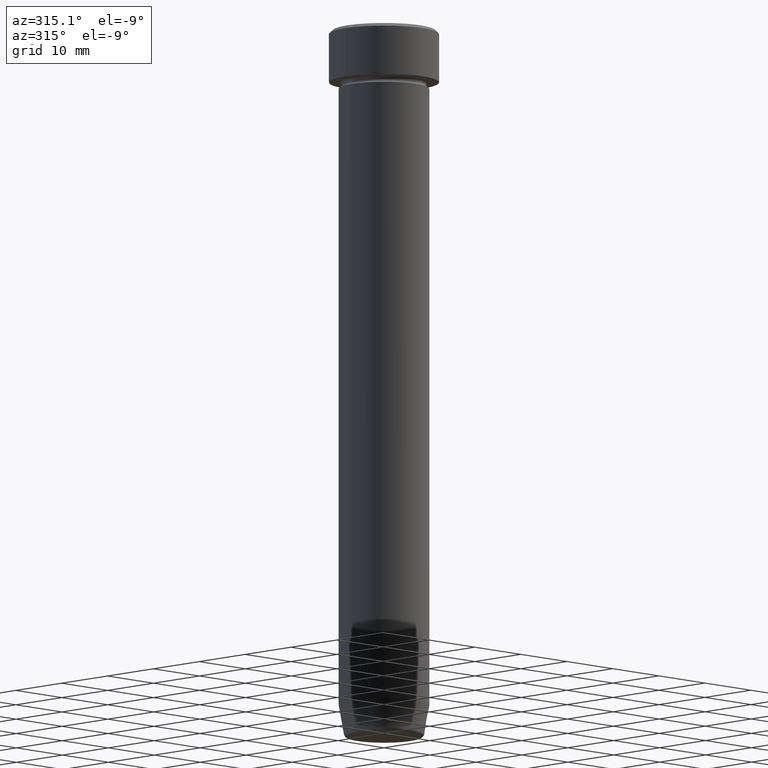
[diagram: clean part render]
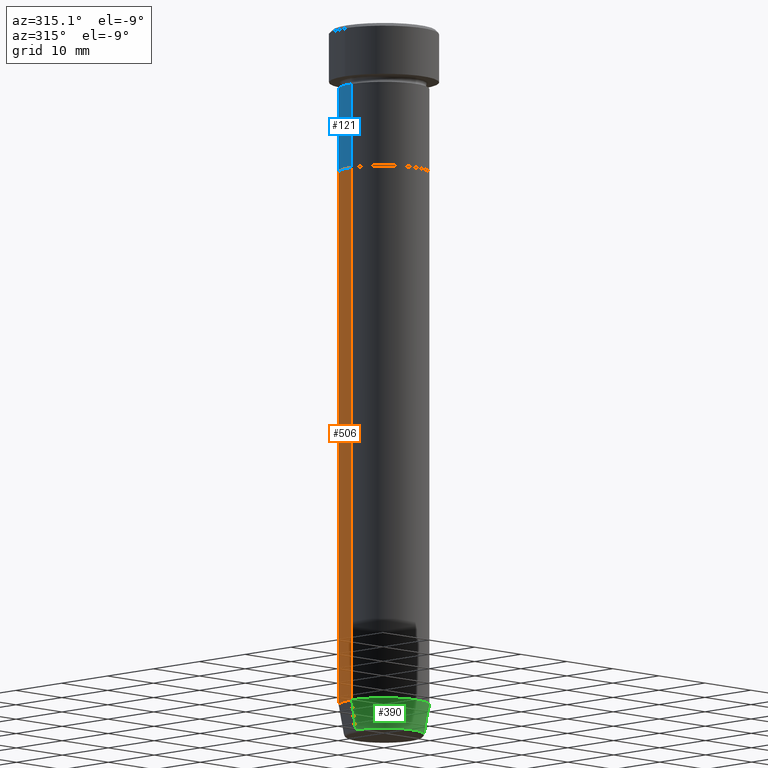
[diagram: same view with three faces highlighted in distinct colors, each labeled with its STEP entity id]
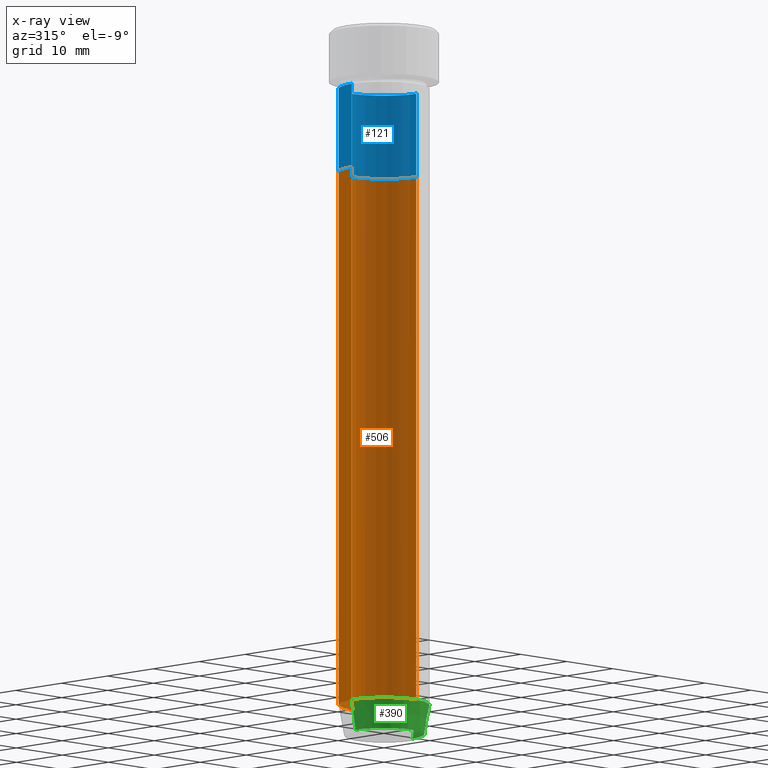
[diagram: x-ray of the same camera — body ghosted, the three highlighted faces saturated]
A machine part, auxiliary view with three faces highlighted in distinct colors.
The next image is the same camera in x-ray (body ghosted, the three faces saturated) — at least one of them is partly hidden behind the body in this view.
Their STEP definitions:

[orange] entity #506 — the highlighted cylindrical surface (partial cylindrical patch) has radius 7 mm, axis along (-0, -0, 1).
#24 = EDGE_CURVE ( 'NONE', #410, #456, #347, .T. ) ;
#35 = EDGE_CURVE ( 'NONE', #590, #457, #519, .T. ) ;
#66 = DIRECTION ( 'NONE',  ( -0.000000000000000000, -0.000000000000000000, 1.000000000000000000 ) ) ;
#120 = AXIS2_PLACEMENT_3D ( 'NONE', #532, #482, #199 ) ;
#157 = ORIENTED_EDGE ( 'NONE', *, *, #411, .T. ) ;
#169 = EDGE_CURVE ( 'NONE', #457, #456, #210, .T. ) ;
#199 = DIRECTION ( 'NONE',  ( 1.000000000000000000, 0.000000000000000000, 0.000000000000000000 ) ) ;
#210 = CIRCLE ( 'NONE', #550, 6.999999999999999112 ) ;
#214 = CARTESIAN_POINT ( 'NONE',  ( 0.000000000000000000, 0.000000000000000000, 0.000000000000000000 ) ) ;
#224 = DIRECTION ( 'NONE',  ( -0.000000000000000000, -0.000000000000000000, 1.000000000000000000 ) ) ;
#249 = CIRCLE ( 'NONE', #120, 6.999999999999999112 ) ;
#266 = ORIENTED_EDGE ( 'NONE', *, *, #35, .F. ) ;
#271 = FACE_OUTER_BOUND ( 'NONE', #580, .T. ) ;
#273 = CARTESIAN_POINT ( 'NONE',  ( -6.999999999999999112, 8.572527594031472204E-16, -22.00000000000000000 ) ) ;
#298 = DIRECTION ( 'NONE',  ( -0.000000000000000000, -0.000000000000000000, 1.000000000000000000 ) ) ;
#305 = VECTOR ( 'NONE', #298, 1000.000000000000000 ) ;
#324 = CYLINDRICAL_SURFACE ( 'NONE', #527, 6.999999999999999112 ) ;
#344 = CARTESIAN_POINT ( 'NONE',  ( -6.999999999999999112, 8.572527594031472204E-16, -104.9999999999999858 ) ) ;
#347 = LINE ( 'NONE', #522, #305 ) ;
#362 = ORIENTED_EDGE ( 'NONE', *, *, #24, .T. ) ;
#375 = CARTESIAN_POINT ( 'NONE',  ( 6.999999999999999112, 0.000000000000000000, -22.00000000000000000 ) ) ;
#410 = VERTEX_POINT ( 'NONE', #344 ) ;
#411 = EDGE_CURVE ( 'NONE', #590, #410, #249, .T. ) ;
#417 = DIRECTION ( 'NONE',  ( 1.000000000000000000, 0.000000000000000000, 0.000000000000000000 ) ) ;
#437 = ORIENTED_EDGE ( 'NONE', *, *, #169, .F. ) ;
#456 = VERTEX_POINT ( 'NONE', #273 ) ;
#457 = VERTEX_POINT ( 'NONE', #375 ) ;
#469 = DIRECTION ( 'NONE',  ( 1.000000000000000000, 0.000000000000000000, 0.000000000000000000 ) ) ;
#482 = DIRECTION ( 'NONE',  ( -0.000000000000000000, -0.000000000000000000, 1.000000000000000000 ) ) ;
#483 = CARTESIAN_POINT ( 'NONE',  ( 6.999999999999999112, 0.000000000000000000, 0.000000000000000000 ) ) ;
#487 = VECTOR ( 'NONE', #66, 1000.000000000000000 ) ;
#506 = ADVANCED_FACE ( 'NONE', ( #271 ), #324, .T. ) ;
#508 = DIRECTION ( 'NONE',  ( -0.000000000000000000, -0.000000000000000000, 1.000000000000000000 ) ) ;
#519 = LINE ( 'NONE', #483, #487 ) ;
#522 = CARTESIAN_POINT ( 'NONE',  ( -6.999999999999999112, 8.572527594031472204E-16, 0.000000000000000000 ) ) ;
#527 = AXIS2_PLACEMENT_3D ( 'NONE', #214, #224, #417 ) ;
#532 = CARTESIAN_POINT ( 'NONE',  ( 0.000000000000000000, 0.000000000000000000, -104.9999999999999858 ) ) ;
#544 = CARTESIAN_POINT ( 'NONE',  ( 6.999999999999999112, 0.000000000000000000, -104.9999999999999858 ) ) ;
#550 = AXIS2_PLACEMENT_3D ( 'NONE', #557, #508, #469 ) ;
#557 = CARTESIAN_POINT ( 'NONE',  ( 0.000000000000000000, 0.000000000000000000, -22.00000000000000000 ) ) ;
#580 = EDGE_LOOP ( 'NONE', ( #157, #362, #437, #266 ) ) ;
#590 = VERTEX_POINT ( 'NONE', #544 ) ;

[blue] entity #121 — the highlighted cylindrical surface (partial cylindrical patch) has radius 7 mm, axis along (-0, -0, 1).
#2 = ORIENTED_EDGE ( 'NONE', *, *, #486, .F. ) ;
#9 = LINE ( 'NONE', #239, #18 ) ;
#18 = VECTOR ( 'NONE', #145, 1000.000000000000000 ) ;
#25 = ORIENTED_EDGE ( 'NONE', *, *, #62, .T. ) ;
#26 = ORIENTED_EDGE ( 'NONE', *, *, #96, .T. ) ;
#38 = CARTESIAN_POINT ( 'NONE',  ( -6.999999999999999112, 8.572527594031472204E-16, 0.000000000000000000 ) ) ;
#40 = AXIS2_PLACEMENT_3D ( 'NONE', #588, #371, #171 ) ;
#48 = AXIS2_PLACEMENT_3D ( 'NONE', #367, #184, #53 ) ;
#53 = DIRECTION ( 'NONE',  ( 1.000000000000000000, 0.000000000000000000, 0.000000000000000000 ) ) ;
#62 = EDGE_CURVE ( 'NONE', #502, #312, #109, .T. ) ;
#68 = VECTOR ( 'NONE', #219, 1000.000000000000000 ) ;
#77 = FACE_OUTER_BOUND ( 'NONE', #88, .T. ) ;
#88 = EDGE_LOOP ( 'NONE', ( #25, #26, #117, #2 ) ) ;
#96 = EDGE_CURVE ( 'NONE', #312, #423, #360, .T. ) ;
#109 = CIRCLE ( 'NONE', #48, 6.999999999999999112 ) ;
#113 = CARTESIAN_POINT ( 'NONE',  ( -7.000000000000000888, 8.572527594031474176E-16, -9.000000000000001776 ) ) ;
#114 = VERTEX_POINT ( 'NONE', #119 ) ;
#117 = ORIENTED_EDGE ( 'NONE', *, *, #232, .F. ) ;
#119 = CARTESIAN_POINT ( 'NONE',  ( 7.000000000000000000, 0.000000000000000000, -9.000000000000001776 ) ) ;
#121 = ADVANCED_FACE ( 'NONE', ( #77 ), #414, .T. ) ;
#145 = DIRECTION ( 'NONE',  ( -0.000000000000000000, -0.000000000000000000, 1.000000000000000000 ) ) ;
#153 = DIRECTION ( 'NONE',  ( 1.000000000000000000, 0.000000000000000000, 0.000000000000000000 ) ) ;
#171 = DIRECTION ( 'NONE',  ( 1.000000000000000000, 0.000000000000000000, 0.000000000000000000 ) ) ;
#173 = CARTESIAN_POINT ( 'NONE',  ( 6.999999999999999112, 0.000000000000000000, -22.00000000000000000 ) ) ;
#184 = DIRECTION ( 'NONE',  ( -0.000000000000000000, -0.000000000000000000, 1.000000000000000000 ) ) ;
#219 = DIRECTION ( 'NONE',  ( -0.000000000000000000, -0.000000000000000000, 1.000000000000000000 ) ) ;
#232 = EDGE_CURVE ( 'NONE', #114, #423, #342, .T. ) ;
#239 = CARTESIAN_POINT ( 'NONE',  ( 6.999999999999999112, 0.000000000000000000, 0.000000000000000000 ) ) ;
#260 = AXIS2_PLACEMENT_3D ( 'NONE', #574, #338, #153 ) ;
#312 = VERTEX_POINT ( 'NONE', #319 ) ;
#319 = CARTESIAN_POINT ( 'NONE',  ( -6.999999999999999112, 8.572527594031472204E-16, -22.00000000000000000 ) ) ;
#338 = DIRECTION ( 'NONE',  ( -0.000000000000000000, -0.000000000000000000, 1.000000000000000000 ) ) ;
#342 = CIRCLE ( 'NONE', #260, 7.000000000000000000 ) ;
#360 = LINE ( 'NONE', #38, #68 ) ;
#367 = CARTESIAN_POINT ( 'NONE',  ( 0.000000000000000000, 0.000000000000000000, -22.00000000000000000 ) ) ;
#371 = DIRECTION ( 'NONE',  ( -0.000000000000000000, -0.000000000000000000, 1.000000000000000000 ) ) ;
#414 = CYLINDRICAL_SURFACE ( 'NONE', #40, 6.999999999999999112 ) ;
#423 = VERTEX_POINT ( 'NONE', #113 ) ;
#486 = EDGE_CURVE ( 'NONE', #502, #114, #9, .T. ) ;
#502 = VERTEX_POINT ( 'NONE', #173 ) ;
#574 = CARTESIAN_POINT ( 'NONE',  ( 0.000000000000000000, 0.000000000000000000, -9.000000000000001776 ) ) ;
#588 = CARTESIAN_POINT ( 'NONE',  ( 0.000000000000000000, 0.000000000000000000, 0.000000000000000000 ) ) ;

[green] entity #390 — the highlighted conical surface has half-angle 10 deg.
#51 = FACE_OUTER_BOUND ( 'NONE', #208, .T. ) ;
#54 = DIRECTION ( 'NONE',  ( -0.1736481776669302479, 2.126576849575770682E-17, 0.9848077530122081313 ) ) ;
#79 = VECTOR ( 'NONE', #54, 1000.000000000000114 ) ;
#92 = DIRECTION ( 'NONE',  ( 1.000000000000000000, 0.000000000000000000, 0.000000000000000000 ) ) ;
#99 = CONICAL_SURFACE ( 'NONE', #142, 6.118365096457673680, 0.1745329251994328645 ) ;
#128 = LINE ( 'NONE', #327, #79 ) ;
#142 = AXIS2_PLACEMENT_3D ( 'NONE', #384, #285, #470 ) ;
#156 = LINE ( 'NONE', #170, #291 ) ;
#159 = EDGE_CURVE ( 'NONE', #410, #590, #427, .T. ) ;
#170 = CARTESIAN_POINT ( 'NONE',  ( 6.118365096457673680, 0.000000000000000000, -109.9999999999999858 ) ) ;
#192 = ORIENTED_EDGE ( 'NONE', *, *, #363, .F. ) ;
#207 = VERTEX_POINT ( 'NONE', #257 ) ;
#208 = EDGE_LOOP ( 'NONE', ( #192, #405, #374, #536 ) ) ;
#222 = VERTEX_POINT ( 'NONE', #489 ) ;
#257 = CARTESIAN_POINT ( 'NONE',  ( -6.191219157375138060, 8.077292158965354448E-16, -109.5868240888334384 ) ) ;
#265 = EDGE_CURVE ( 'NONE', #207, #222, #551, .T. ) ;
#285 = DIRECTION ( 'NONE',  ( -0.000000000000000000, -0.000000000000000000, 1.000000000000000000 ) ) ;
#291 = VECTOR ( 'NONE', #495, 1000.000000000000114 ) ;
#293 = DIRECTION ( 'NONE',  ( -0.000000000000000000, -0.000000000000000000, 1.000000000000000000 ) ) ;
#326 = CARTESIAN_POINT ( 'NONE',  ( 0.000000000000000000, 0.000000000000000000, -104.9999999999999858 ) ) ;
#327 = CARTESIAN_POINT ( 'NONE',  ( -6.118365096457673680, 7.492836231391777609E-16, -109.9999999999999858 ) ) ;
#344 = CARTESIAN_POINT ( 'NONE',  ( -6.999999999999999112, 8.572527594031472204E-16, -104.9999999999999858 ) ) ;
#363 = EDGE_CURVE ( 'NONE', #207, #410, #128, .T. ) ;
#374 = ORIENTED_EDGE ( 'NONE', *, *, #587, .T. ) ;
#384 = CARTESIAN_POINT ( 'NONE',  ( 0.000000000000000000, 0.000000000000000000, -109.9999999999999858 ) ) ;
#390 = ADVANCED_FACE ( 'NONE', ( #51 ), #99, .T. ) ;
#402 = CARTESIAN_POINT ( 'NONE',  ( 0.000000000000000000, 0.000000000000000000, -109.5868240888334384 ) ) ;
#405 = ORIENTED_EDGE ( 'NONE', *, *, #265, .T. ) ;
#410 = VERTEX_POINT ( 'NONE', #344 ) ;
#427 = CIRCLE ( 'NONE', #503, 6.999999999999999112 ) ;
#429 = DIRECTION ( 'NONE',  ( -1.000000000000000000, 0.000000000000000000, 0.000000000000000000 ) ) ;
#467 = DIRECTION ( 'NONE',  ( -0.000000000000000000, -0.000000000000000000, 1.000000000000000000 ) ) ;
#470 = DIRECTION ( 'NONE',  ( 1.000000000000000000, 0.000000000000000000, 0.000000000000000000 ) ) ;
#489 = CARTESIAN_POINT ( 'NONE',  ( 6.191219157375138060, 0.000000000000000000, -109.5868240888334384 ) ) ;
#495 = DIRECTION ( 'NONE',  ( 0.1736481776669302479, 0.000000000000000000, 0.9848077530122081313 ) ) ;
#503 = AXIS2_PLACEMENT_3D ( 'NONE', #326, #467, #92 ) ;
#536 = ORIENTED_EDGE ( 'NONE', *, *, #159, .F. ) ;
#544 = CARTESIAN_POINT ( 'NONE',  ( 6.999999999999999112, 0.000000000000000000, -104.9999999999999858 ) ) ;
#551 = CIRCLE ( 'NONE', #577, 6.191219157375138060 ) ;
#577 = AXIS2_PLACEMENT_3D ( 'NONE', #402, #293, #429 ) ;
#587 = EDGE_CURVE ( 'NONE', #222, #590, #156, .T. ) ;
#590 = VERTEX_POINT ( 'NONE', #544 ) ;